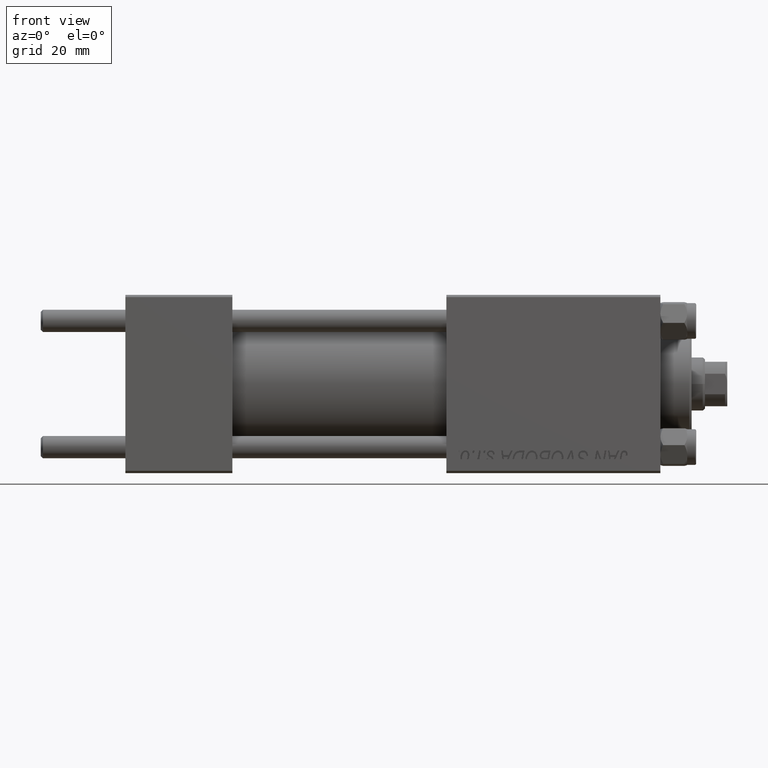
[diagram: clean part render]
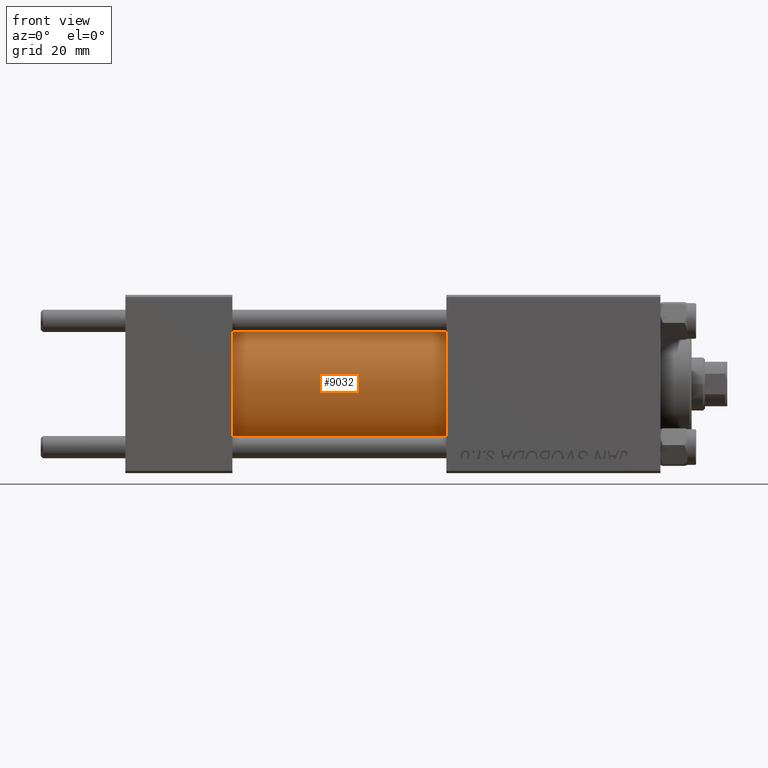
[diagram: same view with one face highlighted and labeled with its STEP entity id]
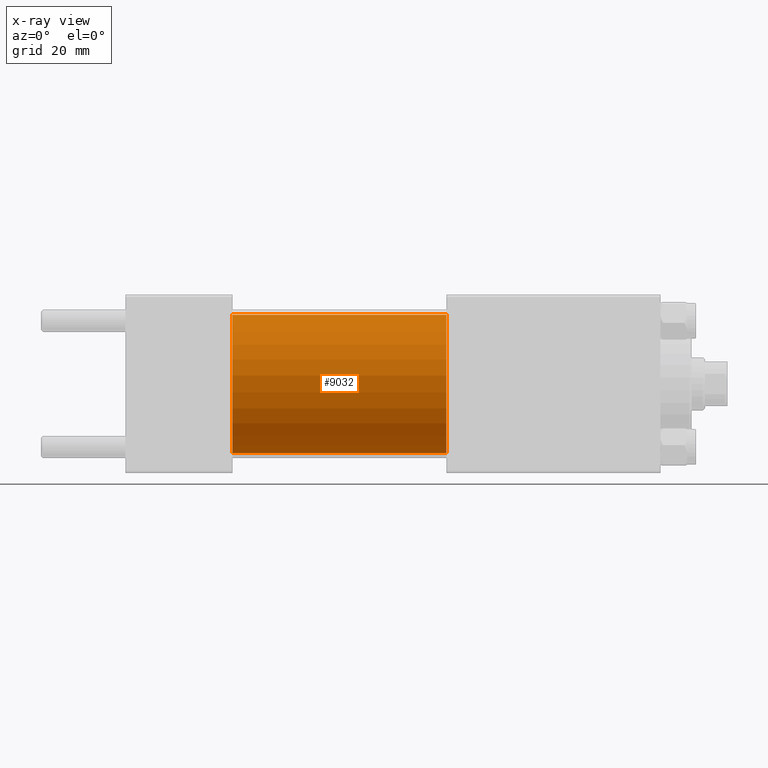
[diagram: x-ray of the same camera — body ghosted, the highlighted face saturated]
A machine part, front view. The second image highlights one B-rep face of the part: STEP entity #9032.
The next image is the same camera in x-ray: the body ghosted, the highlighted face saturated — about 0% of this face is hidden behind the body in this view.
In plain terms, the highlighted cylindrical surface (partial cylindrical patch) has radius 15.5 mm, axis along (-1, -0, -0).
Its self-contained STEP definition (entity closure, byte-faithful):
#2118 = CARTESIAN_POINT ( 'NONE',  ( 24.00000000000000000, 0.000000000000000000, 0.000000000000000000 ) ) ;
#3767 = VERTEX_POINT ( 'NONE', #15140 ) ;
#4225 = ORIENTED_EDGE ( 'NONE', *, *, #6638, .T. ) ;
#5760 = LINE ( 'NONE', #21146, #29356 ) ;
#6638 = EDGE_CURVE ( 'NONE', #3767, #28169, #48026, .T. ) ;
#7098 = CARTESIAN_POINT ( 'NONE',  ( 72.00000000000001421, 0.000000000000000000, 15.50000000000000000 ) ) ;
#8759 = CARTESIAN_POINT ( 'NONE',  ( 72.00000000000001421, 0.000000000000000000, 0.000000000000000000 ) ) ;
#9032 = ADVANCED_FACE ( 'NONE', ( #39042 ), #12271, .T. ) ;
#9911 = VERTEX_POINT ( 'NONE', #23649 ) ;
#12271 = CYLINDRICAL_SURFACE ( 'NONE', #37669, 15.50000000000000000 ) ;
#12776 = DIRECTION ( 'NONE',  ( 1.000000000000000000, 0.000000000000000000, 0.000000000000000000 ) ) ;
#15140 = CARTESIAN_POINT ( 'NONE',  ( 72.00000000000001421, 0.000000000000000000, 15.50000000000000000 ) ) ;
#15823 = VERTEX_POINT ( 'NONE', #21370 ) ;
#16851 = CIRCLE ( 'NONE', #18475, 15.50000000000000000 ) ;
#17351 = DIRECTION ( 'NONE',  ( -1.000000000000000000, -0.000000000000000000, -0.000000000000000000 ) ) ;
#18475 = AXIS2_PLACEMENT_3D ( 'NONE', #2118, #41000, #48335 ) ;
#18867 = CARTESIAN_POINT ( 'NONE',  ( 72.00000000000001421, 0.000000000000000000, 0.000000000000000000 ) ) ;
#19605 = DIRECTION ( 'NONE',  ( 0.000000000000000000, 0.000000000000000000, 1.000000000000000000 ) ) ;
#21146 = CARTESIAN_POINT ( 'NONE',  ( 72.00000000000001421, 1.898202538678397557E-15, -15.50000000000000000 ) ) ;
#21370 = CARTESIAN_POINT ( 'NONE',  ( 24.00000000000000000, 1.898202538678397557E-15, -15.50000000000000000 ) ) ;
#22424 = EDGE_CURVE ( 'NONE', #28169, #15823, #16851, .T. ) ;
#23649 = CARTESIAN_POINT ( 'NONE',  ( 72.00000000000001421, 1.898202538678397557E-15, -15.50000000000000000 ) ) ;
#26310 = VECTOR ( 'NONE', #45237, 1000.000000000000000 ) ;
#26889 = CIRCLE ( 'NONE', #42204, 15.50000000000000000 ) ;
#28169 = VERTEX_POINT ( 'NONE', #44213 ) ;
#29356 = VECTOR ( 'NONE', #17351, 1000.000000000000000 ) ;
#29921 = ORIENTED_EDGE ( 'NONE', *, *, #38891, .F. ) ;
#30739 = DIRECTION ( 'NONE',  ( -1.000000000000000000, -0.000000000000000000, -0.000000000000000000 ) ) ;
#36095 = EDGE_CURVE ( 'NONE', #3767, #9911, #26889, .T. ) ;
#37175 = ORIENTED_EDGE ( 'NONE', *, *, #22424, .T. ) ;
#37669 = AXIS2_PLACEMENT_3D ( 'NONE', #18867, #30739, #19605 ) ;
#37804 = EDGE_LOOP ( 'NONE', ( #29921, #41047, #4225, #37175 ) ) ;
#38891 = EDGE_CURVE ( 'NONE', #9911, #15823, #5760, .T. ) ;
#39042 = FACE_OUTER_BOUND ( 'NONE', #37804, .T. ) ;
#41000 = DIRECTION ( 'NONE',  ( 1.000000000000000000, 0.000000000000000000, 0.000000000000000000 ) ) ;
#41047 = ORIENTED_EDGE ( 'NONE', *, *, #36095, .F. ) ;
#42204 = AXIS2_PLACEMENT_3D ( 'NONE', #8759, #12776, #42609 ) ;
#42609 = DIRECTION ( 'NONE',  ( 0.000000000000000000, 0.000000000000000000, -1.000000000000000000 ) ) ;
#44213 = CARTESIAN_POINT ( 'NONE',  ( 24.00000000000000000, 0.000000000000000000, 15.50000000000000000 ) ) ;
#45237 = DIRECTION ( 'NONE',  ( -1.000000000000000000, -0.000000000000000000, -0.000000000000000000 ) ) ;
#48026 = LINE ( 'NONE', #7098, #26310 ) ;
#48335 = DIRECTION ( 'NONE',  ( 0.000000000000000000, 0.000000000000000000, 1.000000000000000000 ) ) ;